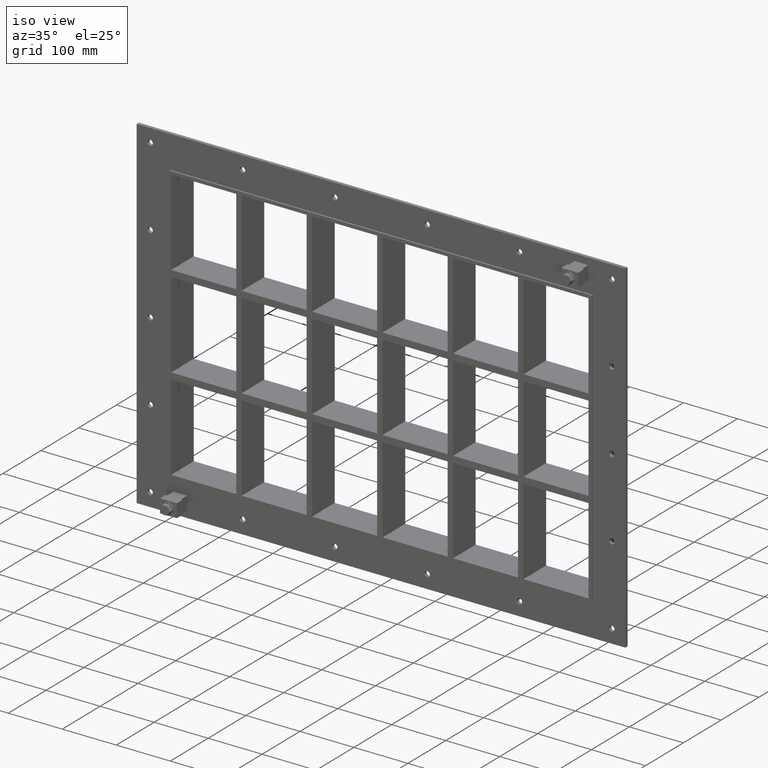
[diagram: clean part render]
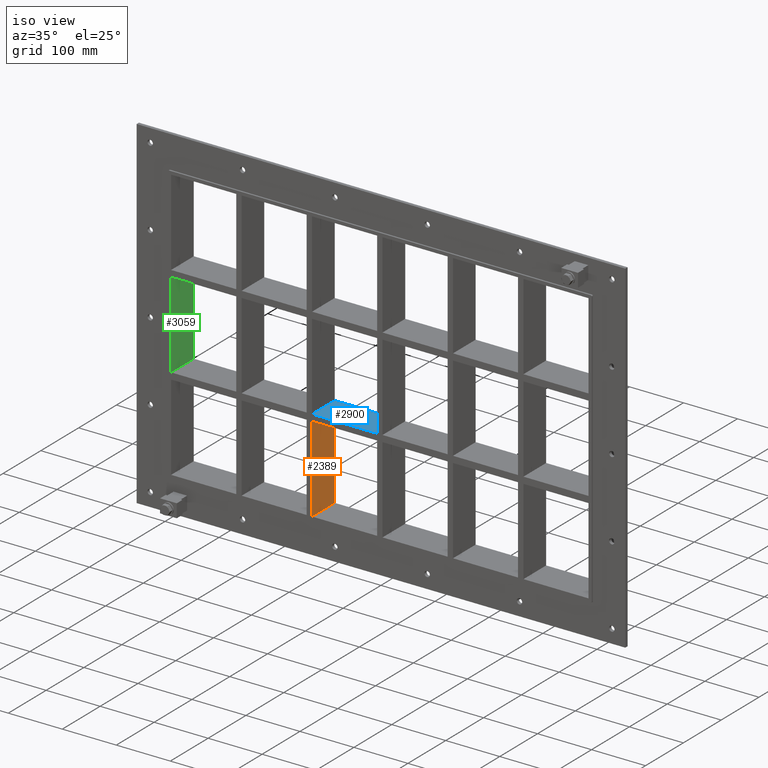
[diagram: same view with three faces highlighted in distinct colors, each labeled with its STEP entity id]
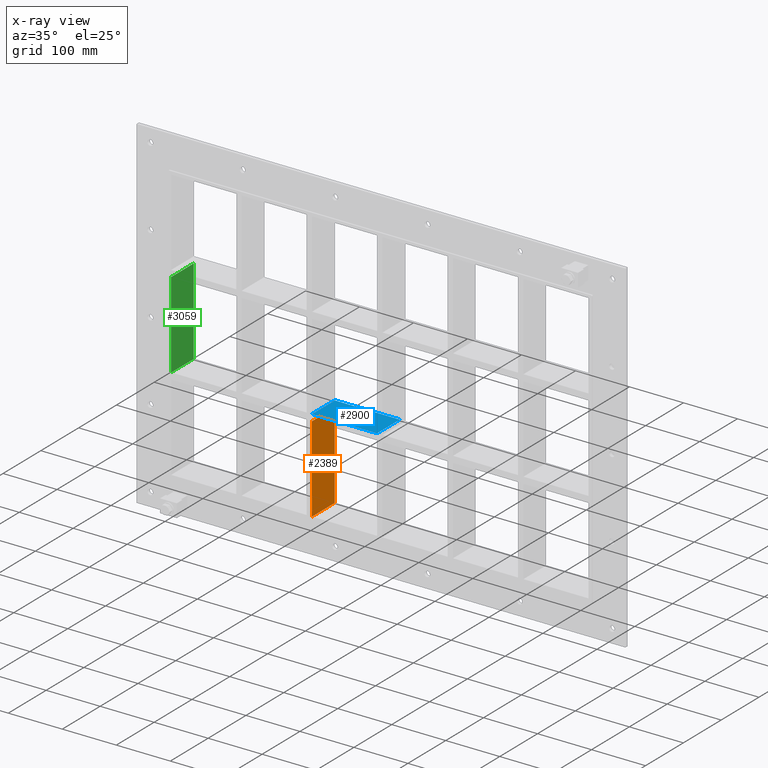
[diagram: x-ray of the same camera — body ghosted, the three highlighted faces saturated]
A machine part, iso view with three faces highlighted in distinct colors.
The next image is the same camera in x-ray (body ghosted, the three faces saturated) — at least one of them is partly hidden behind the body in this view.
Their STEP definitions:

[orange] entity #2389 — the highlighted planar face has unit normal (1, 0, 0).
#1812=CARTESIAN_POINT('',(-125.50000000000364,57.0,-91.750000000010914));
#1813=VERTEX_POINT('',#1812);
#1820=CARTESIAN_POINT('',(-125.50000000000364,57.0,-251.24999999998175));
#1821=VERTEX_POINT('',#1820);
#1822=CARTESIAN_POINT('',(-125.50000000000364,57.0,-91.750000000010914));
#1823=DIRECTION('',(0.0,0.0,-1.0));
#1824=VECTOR('',#1823,159.49999999997084);
#1825=LINE('',#1822,#1824);
#1826=EDGE_CURVE('',#1813,#1821,#1825,.T.);
#2359=CARTESIAN_POINT('',(-125.50000000000364,-3.0,251.25));
#2360=DIRECTION('',(1.0,0.0,0.0));
#2361=DIRECTION('',(0.0,0.0,-1.0));
#2362=AXIS2_PLACEMENT_3D('',#2359,#2360,#2361);
#2363=PLANE('',#2362);
#2364=CARTESIAN_POINT('',(-125.50000000000364,-3.0,-91.750000000010914));
#2365=VERTEX_POINT('',#2364);
#2366=CARTESIAN_POINT('',(-125.50000000000365,-3.0,-91.750000000010928));
#2367=DIRECTION('',(0.0,1.0,0.0));
#2368=VECTOR('',#2367,60.0);
#2369=LINE('',#2366,#2368);
#2370=EDGE_CURVE('',#2365,#1813,#2369,.T.);
#2371=ORIENTED_EDGE('',*,*,#2370,.F.);
#2372=CARTESIAN_POINT('',(-125.50000000000364,-3.0,-251.24999999998175));
#2373=VERTEX_POINT('',#2372);
#2374=CARTESIAN_POINT('',(-125.50000000000364,-3.0,-91.750000000010914));
#2375=DIRECTION('',(0.0,0.0,-1.0));
#2376=VECTOR('',#2375,159.49999999997084);
#2377=LINE('',#2374,#2376);
#2378=EDGE_CURVE('',#2365,#2373,#2377,.T.);
#2379=ORIENTED_EDGE('',*,*,#2378,.T.);
#2380=CARTESIAN_POINT('',(-125.50000000000365,57.000000000000007,-251.25));
#2381=DIRECTION('',(0.0,-1.0,0.0));
#2382=VECTOR('',#2381,60.000000000000007);
#2383=LINE('',#2380,#2382);
#2384=EDGE_CURVE('',#1821,#2373,#2383,.T.);
#2385=ORIENTED_EDGE('',*,*,#2384,.F.);
#2386=ORIENTED_EDGE('',*,*,#1826,.F.);
#2387=EDGE_LOOP('',(#2371,#2379,#2385,#2386));
#2388=FACE_OUTER_BOUND('',#2387,.T.);
#2389=ADVANCED_FACE('',(#2388),#2363,.T.);

[blue] entity #2900 — the highlighted planar face has unit normal (0, 0, 1).
#1685=CARTESIAN_POINT('',(-125.50000000000364,57.0,-79.750000000000227));
#1686=VERTEX_POINT('',#1685);
#1693=CARTESIAN_POINT('',(-5.000000000000226,57.0,-79.750000000000227));
#1694=VERTEX_POINT('',#1693);
#1695=CARTESIAN_POINT('',(-125.50000000000364,57.0,-79.750000000000227));
#1696=DIRECTION('',(1.0,0.0,0.0));
#1697=VECTOR('',#1696,120.50000000000341);
#1698=LINE('',#1695,#1697);
#1699=EDGE_CURVE('',#1686,#1694,#1698,.T.);
#2177=CARTESIAN_POINT('',(-5.000000000000226,-3.0,-79.750000000000227));
#2178=VERTEX_POINT('',#2177);
#2179=CARTESIAN_POINT('',(-5.000000000000219,-3.0,-79.750000000000227));
#2180=DIRECTION('',(0.0,1.0,0.0));
#2181=VECTOR('',#2180,60.0);
#2182=LINE('',#2179,#2181);
#2183=EDGE_CURVE('',#2178,#1694,#2182,.T.);
#2341=CARTESIAN_POINT('',(-125.50000000000364,-3.0,-79.750000000000227));
#2342=VERTEX_POINT('',#2341);
#2349=CARTESIAN_POINT('',(-125.50000000000361,57.0,-79.750000000000227));
#2350=DIRECTION('',(0.0,-1.0,0.0));
#2351=VECTOR('',#2350,60.0);
#2352=LINE('',#2349,#2351);
#2353=EDGE_CURVE('',#1686,#2342,#2352,.T.);
#2609=CARTESIAN_POINT('',(-125.50000000000364,-3.0,-79.750000000000227));
#2610=DIRECTION('',(1.0,0.0,0.0));
#2611=VECTOR('',#2610,120.50000000000341);
#2612=LINE('',#2609,#2611);
#2613=EDGE_CURVE('',#2342,#2178,#2612,.T.);
#2889=CARTESIAN_POINT('',(-386.49999999999858,-3.0,-79.750000000000227));
#2890=DIRECTION('',(0.0,0.0,1.0));
#2891=DIRECTION('',(1.0,0.0,0.0));
#2892=AXIS2_PLACEMENT_3D('',#2889,#2890,#2891);
#2893=PLANE('',#2892);
#2894=ORIENTED_EDGE('',*,*,#2183,.T.);
#2895=ORIENTED_EDGE('',*,*,#1699,.F.);
#2896=ORIENTED_EDGE('',*,*,#2353,.T.);
#2897=ORIENTED_EDGE('',*,*,#2613,.T.);
#2898=EDGE_LOOP('',(#2894,#2895,#2896,#2897));
#2899=FACE_OUTER_BOUND('',#2898,.T.);
#2900=ADVANCED_FACE('',(#2899),#2893,.T.);

[green] entity #3059 — the highlighted planar face has unit normal (-1, 0, 0).
#587=CARTESIAN_POINT('',(-386.49999999999858,-3.0,79.749999999989114));
#588=VERTEX_POINT('',#587);
#595=CARTESIAN_POINT('',(-386.49999999999858,57.0,79.749999999989114));
#596=VERTEX_POINT('',#595);
#597=CARTESIAN_POINT('',(-386.50000000000006,57.000000000000007,79.749999999989086));
#598=DIRECTION('',(0.0,-1.0,0.0));
#599=VECTOR('',#598,60.000000000000007);
#600=LINE('',#597,#599);
#601=EDGE_CURVE('',#596,#588,#600,.T.);
#1543=CARTESIAN_POINT('',(-386.49999999999858,57.0,-79.750000000000227));
#1544=VERTEX_POINT('',#1543);
#1545=CARTESIAN_POINT('',(-386.50000000000006,57.0,79.749999999989114));
#1546=DIRECTION('',(0.0,0.0,-1.0));
#1547=VECTOR('',#1546,159.49999999998934);
#1548=LINE('',#1545,#1547);
#1549=EDGE_CURVE('',#596,#1544,#1548,.T.);
#2683=CARTESIAN_POINT('',(-386.49999999999858,-3.0,-79.750000000000227));
#2684=VERTEX_POINT('',#2683);
#2691=CARTESIAN_POINT('',(-386.50000000000006,-3.0,-79.750000000000227));
#2692=DIRECTION('',(0.0,0.0,1.0));
#2693=VECTOR('',#2692,159.49999999998934);
#2694=LINE('',#2691,#2693);
#2695=EDGE_CURVE('',#2684,#588,#2694,.T.);
#3038=CARTESIAN_POINT('',(-386.50000000000006,-3.0,-79.750000000000227));
#3039=DIRECTION('',(0.0,1.0,0.0));
#3040=VECTOR('',#3039,60.000000000000007);
#3041=LINE('',#3038,#3040);
#3042=EDGE_CURVE('',#2684,#1544,#3041,.T.);
#3048=CARTESIAN_POINT('',(-386.50000000000006,0.0,-251.25));
#3049=DIRECTION('',(-1.0,0.0,0.0));
#3050=DIRECTION('',(0.0,0.0,1.0));
#3051=AXIS2_PLACEMENT_3D('',#3048,#3049,#3050);
#3052=PLANE('',#3051);
#3053=ORIENTED_EDGE('',*,*,#601,.T.);
#3054=ORIENTED_EDGE('',*,*,#2695,.F.);
#3055=ORIENTED_EDGE('',*,*,#3042,.T.);
#3056=ORIENTED_EDGE('',*,*,#1549,.F.);
#3057=EDGE_LOOP('',(#3053,#3054,#3055,#3056));
#3058=FACE_OUTER_BOUND('',#3057,.T.);
#3059=ADVANCED_FACE('',(#3058),#3052,.F.);